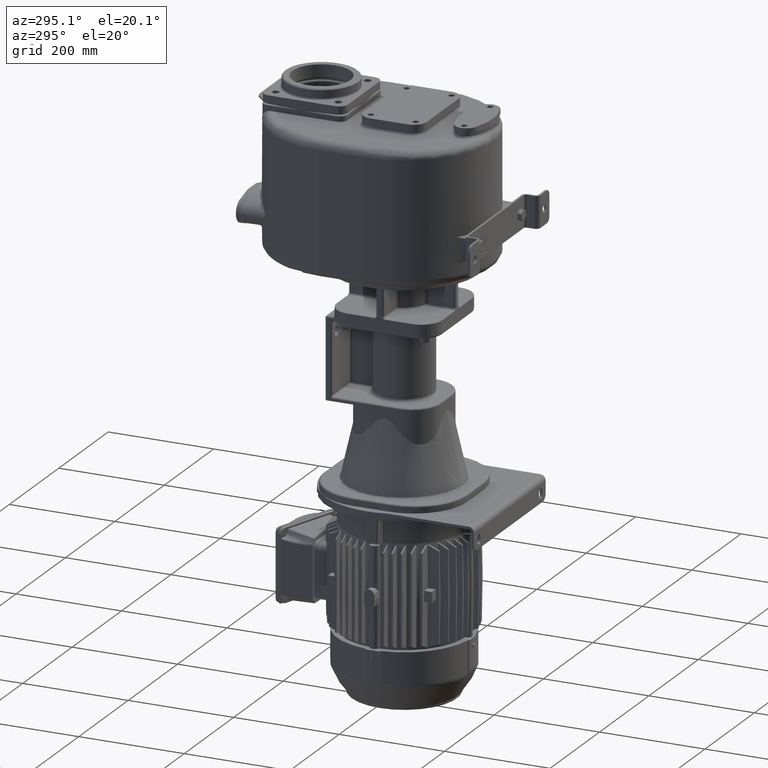
[diagram: clean part render]
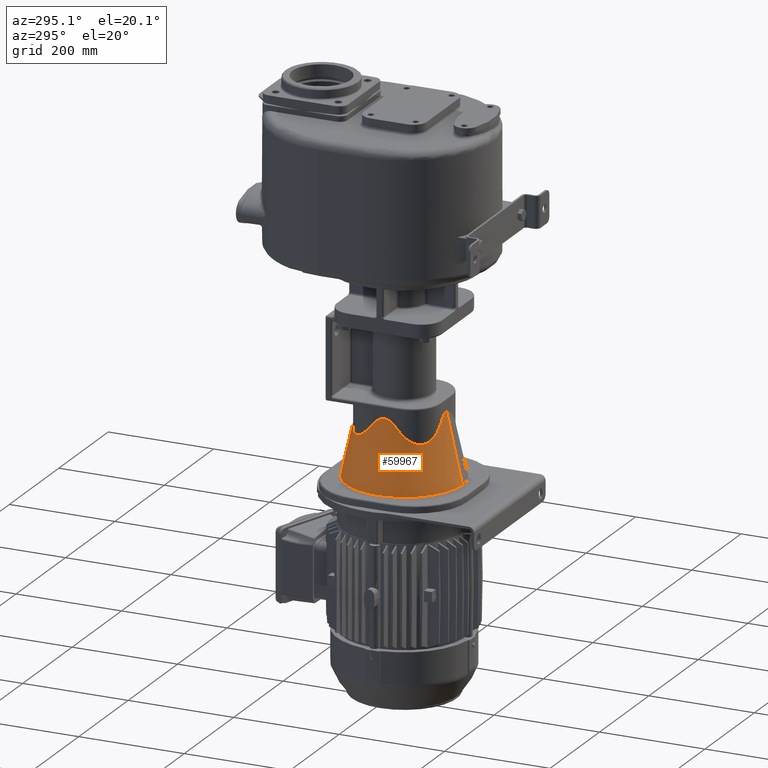
[diagram: same view with one face highlighted and labeled with its STEP entity id]
A machine part, auxiliary view. The second image highlights one B-rep face of the part: STEP entity #59967.
In plain terms, the highlighted conical surface has half-angle 13 deg.
Its self-contained STEP definition (entity closure, byte-faithful):
#7292=DIRECTION('',(0.E0,2.249510543492E-1,9.743700647840E-1));
#7293=VECTOR('',#7292,1.336754637237E2);
#7294=CARTESIAN_POINT('',(-2.436459884889E-14,5.985267368980E1,
-4.721748531630E2));
#7295=LINE('',#7294,#7293);
#7334=CARTESIAN_POINT('',(-2.257282503317E-14,8.992311019507E1,
-3.419254829145E2));
#7654=DIRECTION('',(0.E0,-2.249510543492E-1,9.743700647840E-1));
#7655=VECTOR('',#7654,1.336754637237E2);
#7656=CARTESIAN_POINT('',(3.032627744113E-14,2.801473263102E2,
-4.721748531630E2));
#7657=LINE('',#7656,#7655);
#7658=CARTESIAN_POINT('',(0.E0,1.7E2,-4.721748531630E2));
#7659=DIRECTION('',(0.E0,0.E0,1.E0));
#7660=DIRECTION('',(0.E0,1.E0,0.E0));
#7661=AXIS2_PLACEMENT_3D('',#7658,#7659,#7660);
#7683=CARTESIAN_POINT('',(-2.318802712144E1,2.501919271283E2,
-3.566535035420E2));
#7684=CARTESIAN_POINT('',(-2.287391672714E1,2.501889999114E2,
-3.562633905198E2));
#7685=CARTESIAN_POINT('',(-2.225486205610E1,2.501833215531E2,
-3.555090592474E2));
#7686=CARTESIAN_POINT('',(-2.135807276476E1,2.501753531369E2,
-3.544567100729E2));
#7687=CARTESIAN_POINT('',(-2.048668333505E1,2.501678602961E2,
-3.534725223744E2));
#7688=CARTESIAN_POINT('',(-1.963986497643E1,2.501608216442E2,
-3.525527146764E2));
#7689=CARTESIAN_POINT('',(-1.881725759766E1,2.501542192468E2,
-3.516940350162E2));
#7690=CARTESIAN_POINT('',(-1.801685640152E1,2.501480226120E2,
-3.508917438701E2));
#7691=CARTESIAN_POINT('',(-1.723785398572E1,2.501422118928E2,
-3.501425955851E2));
#7692=CARTESIAN_POINT('',(-1.647901189969E1,2.501367648964E2,
-3.494430994667E2));
#7693=CARTESIAN_POINT('',(-1.573927910248E1,2.501316617410E2,
-3.487901576640E2));
#7694=CARTESIAN_POINT('',(-1.501763617610E1,2.501268835060E2,
-3.481808809224E2));
#7695=CARTESIAN_POINT('',(-1.431309437275E1,2.501224123157E2,
-3.476125830327E2));
#7696=CARTESIAN_POINT('',(-1.362471501455E1,2.501182314551E2,
-3.470827836212E2));
#7697=CARTESIAN_POINT('',(-1.295159193444E1,2.501143252485E2,
-3.465891824669E2));
#7698=CARTESIAN_POINT('',(-1.229285729254E1,2.501106791771E2,
-3.461296541029E2));
#7699=CARTESIAN_POINT('',(-1.164767527454E1,2.501072796110E2,
-3.457022322142E2));
#7700=CARTESIAN_POINT('',(-1.101524049553E1,2.501041138065E2,
-3.453050997435E2));
#7701=CARTESIAN_POINT('',(-1.039477595634E1,2.501011698864E2,
-3.449365792321E2));
#7702=CARTESIAN_POINT('',(-9.785531131047E0,2.500984368177E2,
-3.445951239577E2));
#7703=CARTESIAN_POINT('',(-9.186780372140E0,2.500959043952E2,
-3.442793099206E2));
#7704=CARTESIAN_POINT('',(-8.597822266514E0,2.500935631842E2,
-3.439878286462E2));
#7705=CARTESIAN_POINT('',(-8.017976439836E0,2.500914044406E2,
-3.437194791846E2));
#7706=CARTESIAN_POINT('',(-7.446582160616E0,2.500894201074E2,
-3.434731620155E2));
#7707=CARTESIAN_POINT('',(-6.882996833726E0,2.500876027949E2,
-3.432478733095E2));
#7708=CARTESIAN_POINT('',(-6.326594584377E0,2.500859457669E2,
-3.430426997309E2));
#7709=CARTESIAN_POINT('',(-5.776765045782E0,2.500844429106E2,
-3.428568137068E2));
#7710=CARTESIAN_POINT('',(-5.232913208729E0,2.500830886430E2,
-3.426894690780E2));
#7711=CARTESIAN_POINT('',(-4.694455193884E0,2.500818779368E2,
-3.425399964749E2));
#7712=CARTESIAN_POINT('',(-4.160821009105E0,2.500808063174E2,
-3.424078011097E2));
#7713=CARTESIAN_POINT('',(-3.631448645704E0,2.500798698342E2,
-3.422923579902E2));
#7714=CARTESIAN_POINT('',(-3.105777964094E0,2.500790650647E2,
-3.421932099243E2));
#7715=CARTESIAN_POINT('',(-2.583300442495E0,2.500783891291E2,
-3.421099707240E2));
#7716=CARTESIAN_POINT('',(-2.063376771123E0,2.500778393794E2,
-3.420423000079E2));
#7717=CARTESIAN_POINT('',(-1.545675113189E0,2.500774140105E2,
-3.419899557647E2));
#7718=CARTESIAN_POINT('',(-1.029441956262E0,2.500771111466E2,
-3.419527041508E2));
#7719=CARTESIAN_POINT('',(-5.140444235890E-1,2.500769299185E2,
-3.419304136792E2));
#7720=CARTESIAN_POINT('',(-1.712360822149E-1,2.500768898157E2,
-3.419254830056E2));
#7721=CARTESIAN_POINT('',(1.769476159052E-14,2.500768898049E2,
-3.419254829145E2));
#7723=CARTESIAN_POINT('',(-8.019192712830E1,1.931880271214E2,
-3.566535035420E2));
#7724=CARTESIAN_POINT('',(-8.019578875205E1,1.936024109823E2,
-3.571681520532E2));
#7725=CARTESIAN_POINT('',(-8.019433168690E1,1.944253907923E2,
-3.581768366547E2));
#7726=CARTESIAN_POINT('',(-8.016583071838E1,1.956403754334E2,
-3.596277073330E2));
#7727=CARTESIAN_POINT('',(-8.011220853994E1,1.968364361313E2,
-3.610192944660E2));
#7728=CARTESIAN_POINT('',(-8.003462298844E1,1.980131524273E2,
-3.623531632489E2));
#7729=CARTESIAN_POINT('',(-7.993422816587E1,1.991701659199E2,
-3.636309006408E2));
#7730=CARTESIAN_POINT('',(-7.981211078463E1,2.003075604965E2,
-3.648544966253E2));
#7731=CARTESIAN_POINT('',(-7.966933873732E1,2.014252276543E2,
-3.660256363953E2));
#7732=CARTESIAN_POINT('',(-7.950693278802E1,2.025232091651E2,
-3.671460846801E2));
#7733=CARTESIAN_POINT('',(-7.932587432150E1,2.036015723951E2,
-3.682175476043E2));
#7734=CARTESIAN_POINT('',(-7.912710625481E1,2.046604157755E2,
-3.692416834742E2));
#7735=CARTESIAN_POINT('',(-7.891152869155E1,2.056998855277E2,
-3.702201202133E2));
#7736=CARTESIAN_POINT('',(-7.868000101531E1,2.067201580578E2,
-3.711544392299E2));
#7737=CARTESIAN_POINT('',(-7.843334088128E1,2.077214417435E2,
-3.720461784371E2));
#7738=CARTESIAN_POINT('',(-7.817232489087E1,2.087039723801E2,
-3.728968307400E2));
#7739=CARTESIAN_POINT('',(-7.789768871669E1,2.096680108016E2,
-3.737078433899E2));
#7740=CARTESIAN_POINT('',(-7.761012739664E1,2.106138404254E2,
-3.744806174735E2));
#7741=CARTESIAN_POINT('',(-7.731029578461E1,2.115417647066E2,
-3.752165073633E2));
#7742=CARTESIAN_POINT('',(-7.699880952153E1,2.124521032011E2,
-3.759168187078E2));
#7743=CARTESIAN_POINT('',(-7.667624556292E1,2.133451904235E2,
-3.765828098259E2));
#7744=CARTESIAN_POINT('',(-7.634314292139E1,2.142213737197E2,
-3.772156916915E2));
#7745=CARTESIAN_POINT('',(-7.600000351545E1,2.150810110909E2,
-3.778166278006E2));
#7746=CARTESIAN_POINT('',(-7.564729302576E1,2.159244692982E2,
-3.783867343122E2));
#7747=CARTESIAN_POINT('',(-7.528544203210E1,2.167521214690E2,
-3.789270797585E2));
#7748=CARTESIAN_POINT('',(-7.491484703844E1,2.175643454790E2,
-3.794386856670E2));
#7749=CARTESIAN_POINT('',(-7.453587125374E1,2.183615229402E2,
-3.799225274764E2));
#7750=CARTESIAN_POINT('',(-7.414884561748E1,2.191440375898E2,
-3.803795348054E2));
#7751=CARTESIAN_POINT('',(-7.375406974926E1,2.199122740152E2,
-3.808105919931E2));
#7752=CARTESIAN_POINT('',(-7.335181301083E1,2.206666162245E2,
-3.812165384996E2));
#7753=CARTESIAN_POINT('',(-7.294231592920E1,2.214074458462E2,
-3.815981694123E2));
#7754=CARTESIAN_POINT('',(-7.252579074207E1,2.221351419158E2,
-3.819562365362E2));
#7755=CARTESIAN_POINT('',(-7.210242236737E1,2.228500798140E2,
-3.822914489148E2));
#7756=CARTESIAN_POINT('',(-7.167236934414E1,2.235526303465E2,
-3.826044734581E2));
#7757=CARTESIAN_POINT('',(-7.123576469169E1,2.242431589361E2,
-3.828959354978E2));
#7758=CARTESIAN_POINT('',(-7.079271732292E1,2.249220241985E2,
-3.831664195136E2));
#7759=CARTESIAN_POINT('',(-7.034331258350E1,2.255895777713E2,
-3.834164699803E2));
#7760=CARTESIAN_POINT('',(-6.988761293283E1,2.262461638E2,-3.836465918706E2));
#7761=CARTESIAN_POINT('',(-6.942565880248E1,2.268921182381E2,
-3.838572512307E2));
#7762=CARTESIAN_POINT('',(-6.895746930871E1,2.275277683172E2,
-3.840488756843E2));
#7763=CARTESIAN_POINT('',(-6.848304328412E1,2.281534317007E2,
-3.842218550870E2));
#7764=CARTESIAN_POINT('',(-6.800235993305E1,2.287694161906E2,
-3.843765423907E2));
#7765=CARTESIAN_POINT('',(-6.751537930864E1,2.293760193505E2,
-3.845132537304E2));
#7766=CARTESIAN_POINT('',(-6.702204295027E1,2.299735280642E2,
-3.846322688803E2));
#7767=CARTESIAN_POINT('',(-6.652227448617E1,2.305622181157E2,
-3.847338316653E2));
#7768=CARTESIAN_POINT('',(-6.601598034590E1,2.311423535910E2,
-3.848181502040E2));
#7769=CARTESIAN_POINT('',(-6.550305032170E1,2.317141866897E2,
-3.848853978549E2));
#7770=CARTESIAN_POINT('',(-6.498335798709E1,2.322779572798E2,
-3.849357129984E2));
#7771=CARTESIAN_POINT('',(-6.445676108931E1,2.328338925782E2,
-3.849691991472E2));
#7772=CARTESIAN_POINT('',(-6.392310206916E1,2.333822067167E2,
-3.849859251507E2));
#7773=CARTESIAN_POINT('',(-6.338220860815E1,2.339231002047E2,
-3.849859251827E2));
#7774=CARTESIAN_POINT('',(-6.283389429008E1,2.344567594476E2,
-3.849691992258E2));
#7775=CARTESIAN_POINT('',(-6.227795859314E1,2.349833567632E2,
-3.849357130989E2));
#7776=CARTESIAN_POINT('',(-6.171418746776E1,2.355030496199E2,
-3.848853979440E2));
#7777=CARTESIAN_POINT('',(-6.114235377778E1,2.360159801860E2,
-3.848181502355E2));
#7778=CARTESIAN_POINT('',(-6.056221768203E1,2.365222748639E2,
-3.847338316013E2));
#7779=CARTESIAN_POINT('',(-5.997352711187E1,2.370220437511E2,
-3.846322687067E2));
#7780=CARTESIAN_POINT('',(-5.937601789336E1,2.375153804974E2,
-3.845132534210E2));
#7781=CARTESIAN_POINT('',(-5.876941420846E1,2.380023615065E2,
-3.843765419246E2));
#7782=CARTESIAN_POINT('',(-5.815342912014E1,2.384830452749E2,
-3.842218544149E2));
#7783=CARTESIAN_POINT('',(-5.752776505489E1,2.389574717514E2,
-3.840488747466E2));
#7784=CARTESIAN_POINT('',(-5.689211434804E1,2.394256616298E2,
-3.838572500144E2));
#7785=CARTESIAN_POINT('',(-5.624615933133E1,2.398876160844E2,
-3.836465903615E2));
#7786=CARTESIAN_POINT('',(-5.558957277999E1,2.403433159985E2,
-3.834164681738E2));
#7787=CARTESIAN_POINT('',(-5.492201868027E1,2.407927209845E2,
-3.831664173857E2));
#7788=CARTESIAN_POINT('',(-5.424315286451E1,2.412357685954E2,
-3.828959330106E2));
#7789=CARTESIAN_POINT('',(-5.355262374843E1,2.416723734520E2,
-3.826044705987E2));
#7790=CARTESIAN_POINT('',(-5.285007275410E1,2.421024266204E2,
-3.822914456891E2));
#7791=CARTESIAN_POINT('',(-5.213513446605E1,2.425257950813E2,
-3.819562329581E2));
#7792=CARTESIAN_POINT('',(-5.140743803516E1,2.429423203251E2,
-3.815981654809E2));
#7793=CARTESIAN_POINT('',(-5.066660806355E1,2.433518174437E2,
-3.812165342038E2));
#7794=CARTESIAN_POINT('',(-4.991226552905E1,2.437540741933E2,
-3.808105873301E2));
#7795=CARTESIAN_POINT('',(-4.914402883356E1,2.441488500332E2,
-3.803795297925E2));
#7796=CARTESIAN_POINT('',(-4.836151395533E1,2.445358756119E2,
-3.799225221269E2));
#7797=CARTESIAN_POINT('',(-4.756433629178E1,2.449148513185E2,
-3.794386799862E2));
#7798=CARTESIAN_POINT('',(-4.675211212422E1,2.452854462066E2,
-3.789270737648E2));
#7799=CARTESIAN_POINT('',(-4.592445986230E1,2.456472970606E2,
-3.783867280420E2));
#7800=CARTESIAN_POINT('',(-4.508100163638E1,2.460000073784E2,
-3.778166213003E2));
#7801=CARTESIAN_POINT('',(-4.422136428289E1,2.463431465978E2,
-3.772156849844E2));
#7802=CARTESIAN_POINT('',(-4.334518103262E1,2.466762490424E2,
-3.765828029309E2));
#7803=CARTESIAN_POINT('',(-4.245209397366E1,2.469988127643E2,
-3.759168117157E2));
#7804=CARTESIAN_POINT('',(-4.154175577969E1,2.473102987507E2,
-3.752165003848E2));
#7805=CARTESIAN_POINT('',(-4.061383185987E1,2.476101300800E2,
-3.744806105753E2));
#7806=CARTESIAN_POINT('',(-3.966800254085E1,2.478976911465E2,
-3.737078365379E2));
#7807=CARTESIAN_POINT('',(-3.870396454806E1,2.481723270428E2,
-3.728968240508E2));
#7808=CARTESIAN_POINT('',(-3.772143455612E1,2.484333427165E2,
-3.720461721203E2));
#7809=CARTESIAN_POINT('',(-3.672015160018E1,2.486800025371E2,
-3.711544333866E2));
#7810=CARTESIAN_POINT('',(-3.569987973198E1,2.489115299460E2,
-3.702201148265E2));
#7811=CARTESIAN_POINT('',(-3.466041061014E1,2.491271072693E2,
-3.692416785380E2));
#7812=CARTESIAN_POINT('',(-3.360156835144E1,2.493258750335E2,
-3.682175436337E2));
#7813=CARTESIAN_POINT('',(-3.252320605745E1,2.495069332750E2,
-3.671460815456E2));
#7814=CARTESIAN_POINT('',(-3.142522455985E1,2.496693391651E2,
-3.660256331932E2));
#7815=CARTESIAN_POINT('',(-3.030755702055E1,2.498121111920E2,
-3.648544929324E2));
#7816=CARTESIAN_POINT('',(-2.917016301021E1,2.499342284455E2,
-3.636308974664E2));
#7817=CARTESIAN_POINT('',(-2.801314968549E1,2.500346231972E2,
-3.623531601847E2));
#7818=CARTESIAN_POINT('',(-2.683643398456E1,2.501122086537E2,
-3.610192919914E2));
#7819=CARTESIAN_POINT('',(-2.564037376497E1,2.501658307711E2,
-3.596277053575E2));
#7820=CARTESIAN_POINT('',(-2.442538976022E1,2.501943316928E2,
-3.581768353954E2));
#7821=CARTESIAN_POINT('',(-2.360241060556E1,2.501957887514E2,
-3.571681515913E2));
#7822=CARTESIAN_POINT('',(-2.318802712144E1,2.501919271283E2,
-3.566535035420E2));
#7824=CARTESIAN_POINT('',(-8.019192712832E1,1.468119728786E2,
-3.566535035420E2));
#7825=CARTESIAN_POINT('',(-8.018898907669E1,1.471272458488E2,
-3.562619466413E2));
#7826=CARTESIAN_POINT('',(-8.018329084809E1,1.477485053900E2,
-3.555049848848E2));
#7827=CARTESIAN_POINT('',(-8.017529817872E1,1.486481822617E2,
-3.544494678763E2));
#7828=CARTESIAN_POINT('',(-8.016778578132E1,1.495220994439E2,
-3.534627585780E2));
#7829=CARTESIAN_POINT('',(-8.016073128023E1,1.503711714883E2,
-3.525409323242E2));
#7830=CARTESIAN_POINT('',(-8.015411686363E1,1.511957113661E2,
-3.516807441124E2));
#7831=CARTESIAN_POINT('',(-8.014791129309E1,1.519977726874E2,
-3.508773604766E2));
#7832=CARTESIAN_POINT('',(-8.014209434863E1,1.527781872590E2,
-3.501274762281E2));
#7833=CARTESIAN_POINT('',(-8.013664369162E1,1.535381944926E2,
-3.494275670194E2));
#7834=CARTESIAN_POINT('',(-8.013153897911E1,1.542788748458E2,
-3.487744778204E2));
#7835=CARTESIAN_POINT('',(-8.012676101992E1,1.550012571727E2,
-3.481652847293E2));
#7836=CARTESIAN_POINT('',(-8.012229162756E1,1.557063473476E2,
-3.475972630291E2));
#7837=CARTESIAN_POINT('',(-8.011811380618E1,1.563950976641E2,
-3.470679000498E2));
#7838=CARTESIAN_POINT('',(-8.011421178171E1,1.570684258154E2,
-3.465748681284E2));
#7839=CARTESIAN_POINT('',(-8.011057081668E1,1.577272117482E2,
-3.461160157542E2));
#7840=CARTESIAN_POINT('',(-8.010717706527E1,1.583723026692E2,
-3.456893532803E2));
#7841=CARTESIAN_POINT('',(-8.010401760137E1,1.590045148111E2,
-3.452930428136E2));
#7842=CARTESIAN_POINT('',(-8.010108039314E1,1.596246355652E2,
-3.449253882970E2));
#7843=CARTESIAN_POINT('',(-8.009835430656E1,1.602334247117E2,
-3.445848269606E2));
#7844=CARTESIAN_POINT('',(-8.009582904392E1,1.608316153233E2,
-3.442699211542E2));
#7845=CARTESIAN_POINT('',(-8.009349502665E1,1.614199175112E2,
-3.439793491125E2));
#7846=CARTESIAN_POINT('',(-8.009134340711E1,1.619990197758E2,
-3.437118983051E2));
#7847=CARTESIAN_POINT('',(-8.008936604885E1,1.625695905744E2,
-3.434664590292E2));
#7848=CARTESIAN_POINT('',(-8.008755552675E1,1.631322799803E2,
-3.432420186061E2));
#7849=CARTESIAN_POINT('',(-8.008590503746E1,1.636877196166E2,
-3.430376562705E2));
#7850=CARTESIAN_POINT('',(-8.008440835031E1,1.642365253657E2,
-3.428525375609E2));
#7851=CARTESIAN_POINT('',(-8.008305983071E1,1.647792991266E2,
-3.426859100003E2));
#7852=CARTESIAN_POINT('',(-8.008185442452E1,1.653166299189E2,
-3.425370992441E2));
#7853=CARTESIAN_POINT('',(-8.008078765695E1,1.658490951963E2,
-3.424055056074E2));
#7854=CARTESIAN_POINT('',(-8.007985558878E1,1.663772616306E2,
-3.422906009021E2));
#7855=CARTESIAN_POINT('',(-8.007905469456E1,1.669016860684E2,
-3.421919251751E2));
#7856=CARTESIAN_POINT('',(-8.007838196487E1,1.674229177716E2,
-3.421090845574E2));
#7857=CARTESIAN_POINT('',(-8.007783489237E1,1.679414993050E2,
-3.420417492850E2));
#7858=CARTESIAN_POINT('',(-8.007741146387E1,1.684579676194E2,
-3.419896519931E2));
#7859=CARTESIAN_POINT('',(-8.007711017588E1,1.689728550786E2,
-3.419525864303E2));
#7860=CARTESIAN_POINT('',(-8.007692988107E1,1.694866903336E2,
-3.419304057272E2));
#7861=CARTESIAN_POINT('',(-8.007686986094E1,1.699999999776E2,
-3.419230219111E2));
#7862=CARTESIAN_POINT('',(-8.007692988115E1,1.705133096215E2,
-3.419304057263E2));
#7863=CARTESIAN_POINT('',(-8.007711017598E1,1.710271448763E2,
-3.419525864282E2));
#7864=CARTESIAN_POINT('',(-8.007741146378E1,1.715420323354E2,
-3.419896519889E2));
#7865=CARTESIAN_POINT('',(-8.007783489222E1,1.720585006498E2,
-3.420417492793E2));
#7866=CARTESIAN_POINT('',(-8.007838196478E1,1.725770821828E2,
-3.421090845507E2));
#7867=CARTESIAN_POINT('',(-8.007905469455E1,1.730983138857E2,
-3.421919251673E2));
#7868=CARTESIAN_POINT('',(-8.007985558880E1,1.736227383230E2,
-3.422906008932E2));
#7869=CARTESIAN_POINT('',(-8.008078765689E1,1.741509047569E2,
-3.424055055967E2));
#7870=CARTESIAN_POINT('',(-8.008185442432E1,1.746833700344E2,
-3.425370992314E2));
#7871=CARTESIAN_POINT('',(-8.008305983055E1,1.752207008261E2,
-3.426859099863E2));
#7872=CARTESIAN_POINT('',(-8.008440835020E1,1.757634745863E2,
-3.428525375455E2));
#7873=CARTESIAN_POINT('',(-8.008590503738E1,1.763122803345E2,
-3.430376562535E2));
#7874=CARTESIAN_POINT('',(-8.008755552663E1,1.768677199701E2,
-3.432420185873E2));
#7875=CARTESIAN_POINT('',(-8.008936604864E1,1.774304093757E2,
-3.434664590083E2));
#7876=CARTESIAN_POINT('',(-8.009134340690E1,1.780009801737E2,
-3.437118982824E2));
#7877=CARTESIAN_POINT('',(-8.009349502646E1,1.785800824372E2,
-3.439793490880E2));
#7878=CARTESIAN_POINT('',(-8.009582904372E1,1.791683846241E2,
-3.442699211275E2));
#7879=CARTESIAN_POINT('',(-8.009835430631E1,1.797665752345E2,
-3.445848269314E2));
#7880=CARTESIAN_POINT('',(-8.010108039285E1,1.803753643803E2,
-3.449253882654E2));
#7881=CARTESIAN_POINT('',(-8.010401760115E1,1.809954851337E2,
-3.452930427802E2));
#7882=CARTESIAN_POINT('',(-8.010717706505E1,1.816276972741E2,
-3.456893532441E2));
#7883=CARTESIAN_POINT('',(-8.011057081638E1,1.822727881939E2,
-3.461160157150E2));
#7884=CARTESIAN_POINT('',(-8.011421178128E1,1.829315741254E2,
-3.465748680857E2));
#7885=CARTESIAN_POINT('',(-8.011811380564E1,1.836049022752E2,
-3.470679000035E2));
#7886=CARTESIAN_POINT('',(-8.012229162728E1,1.842936525906E2,
-3.475972629809E2));
#7887=CARTESIAN_POINT('',(-8.012676101972E1,1.849987427639E2,
-3.481652846780E2));
#7888=CARTESIAN_POINT('',(-8.013153897877E1,1.857211250888E2,
-3.487744777645E2));
#7889=CARTESIAN_POINT('',(-8.013664369102E1,1.864618054410E2,
-3.494275669590E2));
#7890=CARTESIAN_POINT('',(-8.014209434777E1,1.872218126726E2,
-3.501274761623E2));
#7891=CARTESIAN_POINT('',(-8.014791129238E1,1.880022272428E2,
-3.508773604073E2));
#7892=CARTESIAN_POINT('',(-8.015411686356E1,1.888042885633E2,
-3.516807440426E2));
#7893=CARTESIAN_POINT('',(-8.016073127981E1,1.896288284274E2,
-3.525409322353E2));
#7894=CARTESIAN_POINT('',(-8.016778578109E1,1.904779005009E2,
-3.534627585182E2));
#7895=CARTESIAN_POINT('',(-8.017529817704E1,1.913518176223E2,
-3.544494677406E2));
#7896=CARTESIAN_POINT('',(-8.018329084662E1,1.922514945361E2,
-3.555049847913E2));
#7897=CARTESIAN_POINT('',(-8.018898907675E1,1.928727541188E2,
-3.562619466045E2));
#7898=CARTESIAN_POINT('',(-8.019192712830E1,1.931880271214E2,
-3.566535035420E2));
#7900=CARTESIAN_POINT('',(-2.318802712143E1,8.980807287171E1,
-3.566535035420E2));
#7901=CARTESIAN_POINT('',(-2.360241094223E1,8.980421124850E1,
-3.571681520031E2));
#7902=CARTESIAN_POINT('',(-2.442539071464E1,8.980566831167E1,
-3.581768365638E2));
#7903=CARTESIAN_POINT('',(-2.564037536621E1,8.983416927880E1,
-3.596277072520E2));
#7904=CARTESIAN_POINT('',(-2.683643637668E1,8.988779147296E1,
-3.610192947471E2));
#7905=CARTESIAN_POINT('',(-2.801315264577E1,8.996537702771E1,
-3.623531634970E2));
#7906=CARTESIAN_POINT('',(-2.917016606312E1,9.006577184906E1,
-3.636309007955E2));
#7907=CARTESIAN_POINT('',(-3.030756048103E1,9.018788921336E1,
-3.648544966098E2));
#7908=CARTESIAN_POINT('',(-3.142522780287E1,9.033066128281E1,
-3.660256365465E2));
#7909=CARTESIAN_POINT('',(-3.252320942617E1,9.049306725335E1,
-3.671460849428E2));
#7910=CARTESIAN_POINT('',(-3.360157251683E1,9.067412570053E1,
-3.682175477254E2));
#7911=CARTESIAN_POINT('',(-3.466041579283E1,9.087289374853E1,
-3.692416834903E2));
#7912=CARTESIAN_POINT('',(-3.569988570268E1,9.108847134524E1,
-3.702201203776E2));
#7913=CARTESIAN_POINT('',(-3.672015830930E1,9.131999904513E1,
-3.711544394536E2));
#7914=CARTESIAN_POINT('',(-3.772144191268E1,9.156665916226E1,
-3.720461785866E2));
#7915=CARTESIAN_POINT('',(-3.870397246362E1,9.182767513224E1,
-3.728968308112E2));
#7916=CARTESIAN_POINT('',(-3.966801093421E1,9.210231132169E1,
-3.737078435006E2));
#7917=CARTESIAN_POINT('',(-4.061384064830E1,9.238987267295E1,
-3.744806176537E2));
#7918=CARTESIAN_POINT('',(-4.154176488537E1,9.268970427554E1,
-3.752165075016E2));
#7919=CARTESIAN_POINT('',(-4.245210332111E1,9.300119052072E1,
-3.759168187991E2));
#7920=CARTESIAN_POINT('',(-4.334519054901E1,9.332375448346E1,
-3.765828099178E2));
#7921=CARTESIAN_POINT('',(-4.422137389842E1,9.365685714791E1,
-3.772156918191E2));
#7922=CARTESIAN_POINT('',(-4.508101128494E1,9.399999656378E1,
-3.778166279343E2));
#7923=CARTESIAN_POINT('',(-4.592446948173E1,9.435270705286E1,
-3.783867344338E2));
#7924=CARTESIAN_POINT('',(-4.675212165473E1,9.471455805087E1,
-3.789270798775E2));
#7925=CARTESIAN_POINT('',(-4.756434567707E1,9.508515305368E1,
-3.794386857898E2));
#7926=CARTESIAN_POINT('',(-4.836152314266E1,9.546412884445E1,
-3.799225275970E2));
#7927=CARTESIAN_POINT('',(-4.914403777389E1,9.585115447554E1,
-3.803795349104E2));
#7928=CARTESIAN_POINT('',(-4.991227417736E1,9.624593033572E1,
-3.808105920821E2));
#7929=CARTESIAN_POINT('',(-5.066661637734E1,9.664818707220E1,
-3.812165385803E2));
#7930=CARTESIAN_POINT('',(-5.140744597520E1,9.705768414350E1,
-3.815981694772E2));
#7931=CARTESIAN_POINT('',(-5.213514199653E1,9.747420930549E1,
-3.819562365738E2));
#7932=CARTESIAN_POINT('',(-5.285007984310E1,9.789757765037E1,
-3.822914489279E2));
#7933=CARTESIAN_POINT('',(-5.355263036824E1,9.832763066919E1,
-3.826044734679E2));
#7934=CARTESIAN_POINT('',(-5.424315898998E1,9.876423534267E1,
-3.828959355200E2));
#7935=CARTESIAN_POINT('',(-5.492202428886E1,9.920728273659E1,
-3.831664195496E2));
#7936=CARTESIAN_POINT('',(-5.558957785146E1,9.965668747161E1,
-3.834164700087E2));
#7937=CARTESIAN_POINT('',(-5.624616384998E1,1.001123871027E2,
-3.836465918867E2));
#7938=CARTESIAN_POINT('',(-5.689211830252E1,1.005743412439E2,
-3.838572512518E2));
#7939=CARTESIAN_POINT('',(-5.752776843511E1,1.010425307789E2,
-3.840488757187E2));
#7940=CARTESIAN_POINT('',(-5.815343191842E1,1.015169568820E2,
-3.842218551479E2));
#7941=CARTESIAN_POINT('',(-5.876941641802E1,1.019976402467E2,
-3.843765424461E2));
#7942=CARTESIAN_POINT('',(-5.937601951142E1,1.024846208242E2,
-3.845132537599E2));
#7943=CARTESIAN_POINT('',(-5.997352813936E1,1.029779571134E2,
-3.846322688934E2));
#7944=CARTESIAN_POINT('',(-6.056221812212E1,1.034777255195E2,
-3.847338316661E2));
#7945=CARTESIAN_POINT('',(-6.114235363425E1,1.039840196919E2,
-3.848181502105E2));
#7946=CARTESIAN_POINT('',(-6.171418675039E1,1.044969497328E2,
-3.848853978637E2));
#7947=CARTESIAN_POINT('',(-6.227795729812E1,1.050166420315E2,
-3.849357129966E2));
#7948=CARTESIAN_POINT('',(-6.283389250311E1,1.055432388400E2,
-3.849691991411E2));
#7949=CARTESIAN_POINT('',(-6.338220655805E1,1.060768977739E2,
-3.849859251504E2));
#7950=CARTESIAN_POINT('',(-6.392310005345E1,1.066177912389E2,
-3.849859251830E2));
#7951=CARTESIAN_POINT('',(-6.445675939328E1,1.071661056517E2,
-3.849691992313E2));
#7952=CARTESIAN_POINT('',(-6.498335680394E1,1.077220414489E2,
-3.849357130990E2));
#7953=CARTESIAN_POINT('',(-6.550304969622E1,1.082858126170E2,
-3.848853979327E2));
#7954=CARTESIAN_POINT('',(-6.601598024383E1,1.088576462881E2,
-3.848181502261E2));
#7955=CARTESIAN_POINT('',(-6.652227489151E1,1.094377823499E2,
-3.847338315964E2));
#7956=CARTESIAN_POINT('',(-6.702204383646E1,1.100264729892E2,
-3.846322686889E2));
#7957=CARTESIAN_POINT('',(-6.751538065109E1,1.106239822931E2,
-3.845132533861E2));
#7958=CARTESIAN_POINT('',(-6.800236170554E1,1.112305860433E2,
-3.843765418633E2));
#7959=CARTESIAN_POINT('',(-6.848304545971E1,1.118465711219E2,
-3.842218543475E2));
#7960=CARTESIAN_POINT('',(-6.895747185919E1,1.124722350901E2,
-3.840488747044E2));
#7961=CARTESIAN_POINT('',(-6.942566169733E1,1.131078857455E2,
-3.838572499842E2));
#7962=CARTESIAN_POINT('',(-6.988761614160E1,1.137538407495E2,
-3.836465903350E2));
#7963=CARTESIAN_POINT('',(-7.034331607460E1,1.144104273308E2,
-3.834164681343E2));
#7964=CARTESIAN_POINT('',(-7.079272106395E1,1.150779814402E2,
-3.831664173380E2));
#7965=CARTESIAN_POINT('',(-7.123576864946E1,1.157568472199E2,
-3.828959329758E2));
#7966=CARTESIAN_POINT('',(-7.167237348472E1,1.164473763044E2,
-3.826044705754E2));
#7967=CARTESIAN_POINT('',(-7.210242665718E1,1.171499273067E2,
-3.822914456615E2));
#7968=CARTESIAN_POINT('',(-7.252579514709E1,1.178648656459E2,
-3.819562329054E2));
#7969=CARTESIAN_POINT('',(-7.294232041512E1,1.185925621247E2,
-3.815981654004E2));
#7970=CARTESIAN_POINT('',(-7.335181754351E1,1.193333921203E2,
-3.812165341069E2));
#7971=CARTESIAN_POINT('',(-7.375407429475E1,1.200877346645E2,
-3.808105872239E2));
#7972=CARTESIAN_POINT('',(-7.414885014248E1,1.208559713827E2,
-3.803795296691E2));
#7973=CARTESIAN_POINT('',(-7.453587572596E1,1.216384862799E2,
-3.799225219867E2));
#7974=CARTESIAN_POINT('',(-7.491485142619E1,1.224356639397E2,
-3.794386798428E2));
#7975=CARTESIAN_POINT('',(-7.528544630481E1,1.232478880958E2,
-3.789270736238E2));
#7976=CARTESIAN_POINT('',(-7.564729715420E1,1.240755403562E2,
-3.783867278972E2));
#7977=CARTESIAN_POINT('',(-7.600000747209E1,1.249189985929E2,
-3.778166211424E2));
#7978=CARTESIAN_POINT('',(-7.634314668083E1,1.257786359311E2,
-3.772156848318E2));
#7979=CARTESIAN_POINT('',(-7.667624910197E1,1.266548191285E2,
-3.765828028128E2));
#7980=CARTESIAN_POINT('',(-7.699881281935E1,1.275479061827E2,
-3.759168115969E2));
#7981=CARTESIAN_POINT('',(-7.731029882307E1,1.284582444360E2,
-3.752165002177E2));
#7982=CARTESIAN_POINT('',(-7.761013016109E1,1.293861683999E2,
-3.744806103655E2));
#7983=CARTESIAN_POINT('',(-7.789769119567E1,1.303319976282E2,
-3.737078363969E2));
#7984=CARTESIAN_POINT('',(-7.817232707626E1,1.312960355729E2,
-3.728968239477E2));
#7985=CARTESIAN_POINT('',(-7.843334277004E1,1.322785656520E2,
-3.720461719366E2));
#7986=CARTESIAN_POINT('',(-7.868000260686E1,1.332798486905E2,
-3.711544331275E2));
#7987=CARTESIAN_POINT('',(-7.891152999100E1,1.343001204810E2,
-3.702201146269E2));
#7988=CARTESIAN_POINT('',(-7.912710728028E1,1.353395894456E2,
-3.692416784852E2));
#7989=CARTESIAN_POINT('',(-7.932587506261E1,1.363984318104E2,
-3.682175434731E2));
#7990=CARTESIAN_POINT('',(-7.950693332247E1,1.374767942420E2,
-3.671460812443E2));
#7991=CARTESIAN_POINT('',(-7.966933919069E1,1.385747756280E2,
-3.660256330015E2));
#7992=CARTESIAN_POINT('',(-7.981211119482E1,1.396924430055E2,
-3.648544929037E2));
#7993=CARTESIAN_POINT('',(-7.993422846334E1,1.408298371642E2,
-3.636308972775E2));
#7994=CARTESIAN_POINT('',(-8.003462321431E1,1.419868505466E2,
-3.623531599212E2));
#7995=CARTESIAN_POINT('',(-8.011220866726E1,1.431635662722E2,
-3.610192916972E2));
#7996=CARTESIAN_POINT('',(-8.016583076839E1,1.443596261745E2,
-3.596277054305E2));
#7997=CARTESIAN_POINT('',(-8.019433169137E1,1.455746101574E2,
-3.581768354922E2));
#7998=CARTESIAN_POINT('',(-8.019578875197E1,1.463975893519E2,
-3.571681516443E2));
#7999=CARTESIAN_POINT('',(-8.019192712832E1,1.468119728786E2,
-3.566535035420E2));
#8001=CARTESIAN_POINT('',(-2.257282503317E-14,8.992311019507E1,
-3.419254829145E2));
#8002=CARTESIAN_POINT('',(-1.712359754966E-1,8.992311018206E1,
-3.419254830241E2));
#8003=CARTESIAN_POINT('',(-5.140441712455E-1,8.992307008529E1,
-3.419304136526E2));
#8004=CARTESIAN_POINT('',(-1.029441723779E0,8.992288885410E1,
-3.419527041347E2));
#8005=CARTESIAN_POINT('',(-1.545675034472E0,8.992258599005E1,
-3.419899557548E2));
#8006=CARTESIAN_POINT('',(-2.063376620385E0,8.992216061964E1,
-3.420422999959E2));
#8007=CARTESIAN_POINT('',(-2.583300285946E0,8.992161086951E1,
-3.421099707078E2));
#8008=CARTESIAN_POINT('',(-3.105777844762E0,8.992093493491E1,
-3.421932099057E2));
#8009=CARTESIAN_POINT('',(-3.631448516414E0,8.992013016747E1,
-3.422923579578E2));
#8010=CARTESIAN_POINT('',(-4.160820890696E0,8.991919368367E1,
-3.424078010781E2));
#8011=CARTESIAN_POINT('',(-4.694455080517E0,8.991812206344E1,
-3.425399964451E2));
#8012=CARTESIAN_POINT('',(-5.232913095974E0,8.991691135659E1,
-3.426894690481E2));
#8013=CARTESIAN_POINT('',(-5.776764937518E0,8.991555708888E1,
-3.428568136754E2));
#8014=CARTESIAN_POINT('',(-6.326594480765E0,8.991405423331E1,
-3.430426996945E2));
#8015=CARTESIAN_POINT('',(-6.882996737738E0,8.991239720605E1,
-3.432478732696E2));
#8016=CARTESIAN_POINT('',(-7.446582066555E0,8.991057989311E1,
-3.434731619754E2));
#8017=CARTESIAN_POINT('',(-8.017976346299E0,8.990859555954E1,
-3.437194791434E2));
#8018=CARTESIAN_POINT('',(-8.597822173329E0,8.990643681595E1,
-3.439878286025E2));
#8019=CARTESIAN_POINT('',(-9.186780280263E0,8.990409560521E1,
-3.442793098733E2));
#8020=CARTESIAN_POINT('',(-9.785531042243E0,8.990156318298E1,
-3.445951239083E2));
#8021=CARTESIAN_POINT('',(-1.039477587050E1,8.989883011379E1,
-3.449365791835E2));
#8022=CARTESIAN_POINT('',(-1.101524040874E1,8.989588619350E1,
-3.453050996922E2));
#8023=CARTESIAN_POINT('',(-1.164767518616E1,8.989272038933E1,
-3.457022321577E2));
#8024=CARTESIAN_POINT('',(-1.229285720268E1,8.988932082388E1,
-3.461296540398E2));
#8025=CARTESIAN_POINT('',(-1.295159184335E1,8.988567475301E1,
-3.465891823975E2));
#8026=CARTESIAN_POINT('',(-1.362471492103E1,8.988176854557E1,
-3.470827835505E2));
#8027=CARTESIAN_POINT('',(-1.431309427634E1,8.987758768377E1,
-3.476125829613E2));
#8028=CARTESIAN_POINT('',(-1.501763607581E1,8.987311649385E1,
-3.481808808430E2));
#8029=CARTESIAN_POINT('',(-1.573927899765E1,8.986833825988E1,
-3.487901575728E2));
#8030=CARTESIAN_POINT('',(-1.647901179035E1,8.986323510550E1,
-3.494430993632E2));
#8031=CARTESIAN_POINT('',(-1.723785386731E1,8.985778810962E1,
-3.501425954671E2));
#8032=CARTESIAN_POINT('',(-1.801685627556E1,8.985197738861E1,
-3.508917437478E2));
#8033=CARTESIAN_POINT('',(-1.881725746530E1,8.984578075286E1,
-3.516940348874E2));
#8034=CARTESIAN_POINT('',(-1.963986480746E1,8.983917835655E1,
-3.525527144981E2));
#8035=CARTESIAN_POINT('',(-2.048668324896E1,8.983213970485E1,
-3.534725222789E2));
#8036=CARTESIAN_POINT('',(-2.135807251006E1,8.982464686689E1,
-3.544567097747E2));
#8037=CARTESIAN_POINT('',(-2.225486186483E1,8.981667844974E1,
-3.555090590110E2));
#8038=CARTESIAN_POINT('',(-2.287391664565E1,8.981100008909E1,
-3.562633904216E2));
#8039=CARTESIAN_POINT('',(-2.318802712143E1,8.980807287171E1,
-3.566535035420E2));
#8041=CARTESIAN_POINT('',(0.E0,1.7E2,-4.721748531630E2));
#8042=DIRECTION('',(0.E0,0.E0,1.E0));
#8043=DIRECTION('',(-1.768808949384E-1,-9.842322637497E-1,0.E0));
#8044=AXIS2_PLACEMENT_3D('',#8041,#8042,#8043);
#45562=VERTEX_POINT('',#7683);
#45563=VERTEX_POINT('',#7721);
#45573=VERTEX_POINT('',#7334);
#45575=VERTEX_POINT('',#8039);
#45578=VERTEX_POINT('',#7824);
#45579=VERTEX_POINT('',#7898);
#45580=CARTESIAN_POINT('',(3.032627744113E-14,2.801473263102E2,
-4.721748531630E2));
#45581=VERTEX_POINT('',#45580);
#45588=CARTESIAN_POINT('',(-1.948295765282E1,6.158944767974E1,
-4.721748531630E2));
#45589=VERTEX_POINT('',#45588);
#45590=CARTESIAN_POINT('',(-4.263255802237E-14,5.985267368980E1,
-4.721748531630E2));
#45591=VERTEX_POINT('',#45590);
#59945=CARTESIAN_POINT('',(0.E0,1.7E2,-4.070501680387E2));
#59946=DIRECTION('',(0.E0,0.E0,-1.E0));
#59947=DIRECTION('',(0.E0,-1.E0,0.E0));
#59948=AXIS2_PLACEMENT_3D('',#59945,#59946,#59947);
#59949=CONICAL_SURFACE('',#59948,9.511210805792E1,1.3E1);
#59950=ORIENTED_EDGE('',*,*,#59913,.F.);
#59952=ORIENTED_EDGE('',*,*,#59951,.F.);
#59953=ORIENTED_EDGE('',*,*,#59933,.F.);
#59954=ORIENTED_EDGE('',*,*,#59923,.T.);
#59956=ORIENTED_EDGE('',*,*,#59955,.F.);
#59958=ORIENTED_EDGE('',*,*,#59957,.F.);
#59960=ORIENTED_EDGE('',*,*,#59959,.F.);
#59962=ORIENTED_EDGE('',*,*,#59961,.F.);
#59964=ORIENTED_EDGE('',*,*,#59963,.F.);
#59965=EDGE_LOOP('',(#59950,#59952,#59953,#59954,#59956,#59958,#59960,#59962,
#59964));
#59966=FACE_OUTER_BOUND('',#59965,.F.);
#59967=ADVANCED_FACE('',(#59966),#59949,.T.);
#7662=CIRCLE('',#7661,1.101473263102E2);
#7722=B_SPLINE_CURVE_WITH_KNOTS('',3,(#7683,#7684,#7685,#7686,#7687,#7688,#7689,
#7690,#7691,#7692,#7693,#7694,#7695,#7696,#7697,#7698,#7699,#7700,#7701,#7702,
#7703,#7704,#7705,#7706,#7707,#7708,#7709,#7710,#7711,#7712,#7713,#7714,#7715,
#7716,#7717,#7718,#7719,#7720,#7721),.UNSPECIFIED.,.F.,.F.,(4,1,1,1,1,1,1,1,1,1,
1,1,1,1,1,1,1,1,1,1,1,1,1,1,1,1,1,1,1,1,1,1,1,1,1,1,4),(0.E0,2.777777777778E-2,
5.555555555556E-2,8.333333333333E-2,1.111111111111E-1,1.388888888889E-1,
1.666666666667E-1,1.944444444444E-1,2.222222222222E-1,2.5E-1,2.777777777778E-1,
3.055555555556E-1,3.333333333333E-1,3.611111111111E-1,3.888888888889E-1,
4.166666666667E-1,4.444444444444E-1,4.722222222222E-1,5.E-1,5.277777777778E-1,
5.555555555556E-1,5.833333333333E-1,6.111111111111E-1,6.388888888889E-1,
6.666666666667E-1,6.944444444444E-1,7.222222222222E-1,7.5E-1,7.777777777778E-1,
8.055555555556E-1,8.333333333333E-1,8.611111111111E-1,8.888888888889E-1,
9.166666666667E-1,9.444444444444E-1,9.722222222222E-1,1.E0),.UNSPECIFIED.);
#7823=B_SPLINE_CURVE_WITH_KNOTS('',3,(#7723,#7724,#7725,#7726,#7727,#7728,#7729,
#7730,#7731,#7732,#7733,#7734,#7735,#7736,#7737,#7738,#7739,#7740,#7741,#7742,
#7743,#7744,#7745,#7746,#7747,#7748,#7749,#7750,#7751,#7752,#7753,#7754,#7755,
#7756,#7757,#7758,#7759,#7760,#7761,#7762,#7763,#7764,#7765,#7766,#7767,#7768,
#7769,#7770,#7771,#7772,#7773,#7774,#7775,#7776,#7777,#7778,#7779,#7780,#7781,
#7782,#7783,#7784,#7785,#7786,#7787,#7788,#7789,#7790,#7791,#7792,#7793,#7794,
#7795,#7796,#7797,#7798,#7799,#7800,#7801,#7802,#7803,#7804,#7805,#7806,#7807,
#7808,#7809,#7810,#7811,#7812,#7813,#7814,#7815,#7816,#7817,#7818,#7819,#7820,
#7821,#7822),.UNSPECIFIED.,.F.,.F.,(4,1,1,1,1,1,1,1,1,1,1,1,1,1,1,1,1,1,1,1,1,1,
1,1,1,1,1,1,1,1,1,1,1,1,1,1,1,1,1,1,1,1,1,1,1,1,1,1,1,1,1,1,1,1,1,1,1,1,1,1,1,1,
1,1,1,1,1,1,1,1,1,1,1,1,1,1,1,1,1,1,1,1,1,1,1,1,1,1,1,1,1,1,1,1,1,1,1,4),(0.E0,
1.030927835052E-2,2.061855670103E-2,3.092783505155E-2,4.123711340206E-2,
5.154639175258E-2,6.185567010309E-2,7.216494845361E-2,8.247422680412E-2,
9.278350515464E-2,1.030927835052E-1,1.134020618557E-1,1.237113402062E-1,
1.340206185567E-1,1.443298969072E-1,1.546391752577E-1,1.649484536082E-1,
1.752577319588E-1,1.855670103093E-1,1.958762886598E-1,2.061855670103E-1,
2.164948453608E-1,2.268041237113E-1,2.371134020619E-1,2.474226804124E-1,
2.577319587629E-1,2.680412371134E-1,2.783505154639E-1,2.886597938144E-1,
2.989690721649E-1,3.092783505155E-1,3.195876288660E-1,3.298969072165E-1,
3.402061855670E-1,3.505154639175E-1,3.608247422680E-1,3.711340206186E-1,
3.814432989691E-1,3.917525773196E-1,4.020618556701E-1,4.123711340206E-1,
4.226804123711E-1,4.329896907216E-1,4.432989690722E-1,4.536082474227E-1,
4.639175257732E-1,4.742268041237E-1,4.845360824742E-1,4.948453608247E-1,
5.051546391753E-1,5.154639175258E-1,5.257731958763E-1,5.360824742268E-1,
5.463917525773E-1,5.567010309278E-1,5.670103092784E-1,5.773195876289E-1,
5.876288659794E-1,5.979381443299E-1,6.082474226804E-1,6.185567010309E-1,
6.288659793814E-1,6.391752577320E-1,6.494845360825E-1,6.597938144330E-1,
6.701030927835E-1,6.804123711340E-1,6.907216494845E-1,7.010309278351E-1,
7.113402061856E-1,7.216494845361E-1,7.319587628866E-1,7.422680412371E-1,
7.525773195876E-1,7.628865979381E-1,7.731958762887E-1,7.835051546392E-1,
7.938144329897E-1,8.041237113402E-1,8.144329896907E-1,8.247422680412E-1,
8.350515463918E-1,8.453608247423E-1,8.556701030928E-1,8.659793814433E-1,
8.762886597938E-1,8.865979381443E-1,8.969072164948E-1,9.072164948454E-1,
9.175257731959E-1,9.278350515464E-1,9.381443298969E-1,9.484536082474E-1,
9.587628865979E-1,9.690721649485E-1,9.793814432990E-1,9.896907216495E-1,1.E0),
.UNSPECIFIED.);
#7899=B_SPLINE_CURVE_WITH_KNOTS('',3,(#7824,#7825,#7826,#7827,#7828,#7829,#7830,
#7831,#7832,#7833,#7834,#7835,#7836,#7837,#7838,#7839,#7840,#7841,#7842,#7843,
#7844,#7845,#7846,#7847,#7848,#7849,#7850,#7851,#7852,#7853,#7854,#7855,#7856,
#7857,#7858,#7859,#7860,#7861,#7862,#7863,#7864,#7865,#7866,#7867,#7868,#7869,
#7870,#7871,#7872,#7873,#7874,#7875,#7876,#7877,#7878,#7879,#7880,#7881,#7882,
#7883,#7884,#7885,#7886,#7887,#7888,#7889,#7890,#7891,#7892,#7893,#7894,#7895,
#7896,#7897,#7898),.UNSPECIFIED.,.F.,.F.,(4,1,1,1,1,1,1,1,1,1,1,1,1,1,1,1,1,1,1,
1,1,1,1,1,1,1,1,1,1,1,1,1,1,1,1,1,1,1,1,1,1,1,1,1,1,1,1,1,1,1,1,1,1,1,1,1,1,1,1,
1,1,1,1,1,1,1,1,1,1,1,1,1,4),(0.E0,1.388888888889E-2,2.777777777778E-2,
4.166666666667E-2,5.555555555556E-2,6.944444444444E-2,8.333333333333E-2,
9.722222222222E-2,1.111111111111E-1,1.25E-1,1.388888888889E-1,1.527777777778E-1,
1.666666666667E-1,1.805555555556E-1,1.944444444444E-1,2.083333333333E-1,
2.222222222222E-1,2.361111111111E-1,2.5E-1,2.638888888889E-1,2.777777777778E-1,
2.916666666667E-1,3.055555555556E-1,3.194444444444E-1,3.333333333333E-1,
3.472222222222E-1,3.611111111111E-1,3.75E-1,3.888888888889E-1,4.027777777778E-1,
4.166666666667E-1,4.305555555556E-1,4.444444444444E-1,4.583333333333E-1,
4.722222222222E-1,4.861111111111E-1,5.E-1,5.138888888889E-1,5.277777777778E-1,
5.416666666667E-1,5.555555555556E-1,5.694444444444E-1,5.833333333333E-1,
5.972222222222E-1,6.111111111111E-1,6.25E-1,6.388888888889E-1,6.527777777778E-1,
6.666666666667E-1,6.805555555556E-1,6.944444444444E-1,7.083333333333E-1,
7.222222222222E-1,7.361111111111E-1,7.5E-1,7.638888888889E-1,7.777777777778E-1,
7.916666666667E-1,8.055555555556E-1,8.194444444444E-1,8.333333333333E-1,
8.472222222222E-1,8.611111111111E-1,8.75E-1,8.888888888889E-1,9.027777777778E-1,
9.166666666667E-1,9.305555555556E-1,9.444444444444E-1,9.583333333333E-1,
9.722222222222E-1,9.861111111111E-1,1.E0),.UNSPECIFIED.);
#8000=B_SPLINE_CURVE_WITH_KNOTS('',3,(#7900,#7901,#7902,#7903,#7904,#7905,#7906,
#7907,#7908,#7909,#7910,#7911,#7912,#7913,#7914,#7915,#7916,#7917,#7918,#7919,
#7920,#7921,#7922,#7923,#7924,#7925,#7926,#7927,#7928,#7929,#7930,#7931,#7932,
#7933,#7934,#7935,#7936,#7937,#7938,#7939,#7940,#7941,#7942,#7943,#7944,#7945,
#7946,#7947,#7948,#7949,#7950,#7951,#7952,#7953,#7954,#7955,#7956,#7957,#7958,
#7959,#7960,#7961,#7962,#7963,#7964,#7965,#7966,#7967,#7968,#7969,#7970,#7971,
#7972,#7973,#7974,#7975,#7976,#7977,#7978,#7979,#7980,#7981,#7982,#7983,#7984,
#7985,#7986,#7987,#7988,#7989,#7990,#7991,#7992,#7993,#7994,#7995,#7996,#7997,
#7998,#7999),.UNSPECIFIED.,.F.,.F.,(4,1,1,1,1,1,1,1,1,1,1,1,1,1,1,1,1,1,1,1,1,1,
1,1,1,1,1,1,1,1,1,1,1,1,1,1,1,1,1,1,1,1,1,1,1,1,1,1,1,1,1,1,1,1,1,1,1,1,1,1,1,1,
1,1,1,1,1,1,1,1,1,1,1,1,1,1,1,1,1,1,1,1,1,1,1,1,1,1,1,1,1,1,1,1,1,1,1,4),(0.E0,
1.030927835052E-2,2.061855670103E-2,3.092783505155E-2,4.123711340206E-2,
5.154639175258E-2,6.185567010309E-2,7.216494845361E-2,8.247422680412E-2,
9.278350515464E-2,1.030927835052E-1,1.134020618557E-1,1.237113402062E-1,
1.340206185567E-1,1.443298969072E-1,1.546391752577E-1,1.649484536082E-1,
1.752577319588E-1,1.855670103093E-1,1.958762886598E-1,2.061855670103E-1,
2.164948453608E-1,2.268041237113E-1,2.371134020619E-1,2.474226804124E-1,
2.577319587629E-1,2.680412371134E-1,2.783505154639E-1,2.886597938144E-1,
2.989690721649E-1,3.092783505155E-1,3.195876288660E-1,3.298969072165E-1,
3.402061855670E-1,3.505154639175E-1,3.608247422680E-1,3.711340206186E-1,
3.814432989691E-1,3.917525773196E-1,4.020618556701E-1,4.123711340206E-1,
4.226804123711E-1,4.329896907216E-1,4.432989690722E-1,4.536082474227E-1,
4.639175257732E-1,4.742268041237E-1,4.845360824742E-1,4.948453608247E-1,
5.051546391753E-1,5.154639175258E-1,5.257731958763E-1,5.360824742268E-1,
5.463917525773E-1,5.567010309278E-1,5.670103092784E-1,5.773195876289E-1,
5.876288659794E-1,5.979381443299E-1,6.082474226804E-1,6.185567010309E-1,
6.288659793814E-1,6.391752577320E-1,6.494845360825E-1,6.597938144330E-1,
6.701030927835E-1,6.804123711340E-1,6.907216494845E-1,7.010309278351E-1,
7.113402061856E-1,7.216494845361E-1,7.319587628866E-1,7.422680412371E-1,
7.525773195876E-1,7.628865979381E-1,7.731958762887E-1,7.835051546392E-1,
7.938144329897E-1,8.041237113402E-1,8.144329896907E-1,8.247422680412E-1,
8.350515463918E-1,8.453608247423E-1,8.556701030928E-1,8.659793814433E-1,
8.762886597938E-1,8.865979381443E-1,8.969072164948E-1,9.072164948454E-1,
9.175257731959E-1,9.278350515464E-1,9.381443298969E-1,9.484536082474E-1,
9.587628865979E-1,9.690721649485E-1,9.793814432990E-1,9.896907216495E-1,1.E0),
.UNSPECIFIED.);
#8040=B_SPLINE_CURVE_WITH_KNOTS('',3,(#8001,#8002,#8003,#8004,#8005,#8006,#8007,
#8008,#8009,#8010,#8011,#8012,#8013,#8014,#8015,#8016,#8017,#8018,#8019,#8020,
#8021,#8022,#8023,#8024,#8025,#8026,#8027,#8028,#8029,#8030,#8031,#8032,#8033,
#8034,#8035,#8036,#8037,#8038,#8039),.UNSPECIFIED.,.F.,.F.,(4,1,1,1,1,1,1,1,1,1,
1,1,1,1,1,1,1,1,1,1,1,1,1,1,1,1,1,1,1,1,1,1,1,1,1,1,4),(0.E0,2.777777777778E-2,
5.555555555556E-2,8.333333333333E-2,1.111111111111E-1,1.388888888889E-1,
1.666666666667E-1,1.944444444444E-1,2.222222222222E-1,2.5E-1,2.777777777778E-1,
3.055555555556E-1,3.333333333333E-1,3.611111111111E-1,3.888888888889E-1,
4.166666666667E-1,4.444444444444E-1,4.722222222222E-1,5.E-1,5.277777777778E-1,
5.555555555556E-1,5.833333333333E-1,6.111111111111E-1,6.388888888889E-1,
6.666666666667E-1,6.944444444444E-1,7.222222222222E-1,7.5E-1,7.777777777778E-1,
8.055555555556E-1,8.333333333333E-1,8.611111111111E-1,8.888888888889E-1,
9.166666666667E-1,9.444444444444E-1,9.722222222222E-1,1.E0),.UNSPECIFIED.);
#8045=CIRCLE('',#8044,1.101473263102E2);
#59913=EDGE_CURVE('',#45591,#45573,#7295,.T.);
#59923=EDGE_CURVE('',#45581,#45563,#7657,.T.);
#59933=EDGE_CURVE('',#45581,#45589,#7662,.T.);
#59951=EDGE_CURVE('',#45589,#45591,#8045,.T.);
#59955=EDGE_CURVE('',#45562,#45563,#7722,.T.);
#59957=EDGE_CURVE('',#45579,#45562,#7823,.T.);
#59959=EDGE_CURVE('',#45578,#45579,#7899,.T.);
#59961=EDGE_CURVE('',#45575,#45578,#8000,.T.);
#59963=EDGE_CURVE('',#45573,#45575,#8040,.T.);